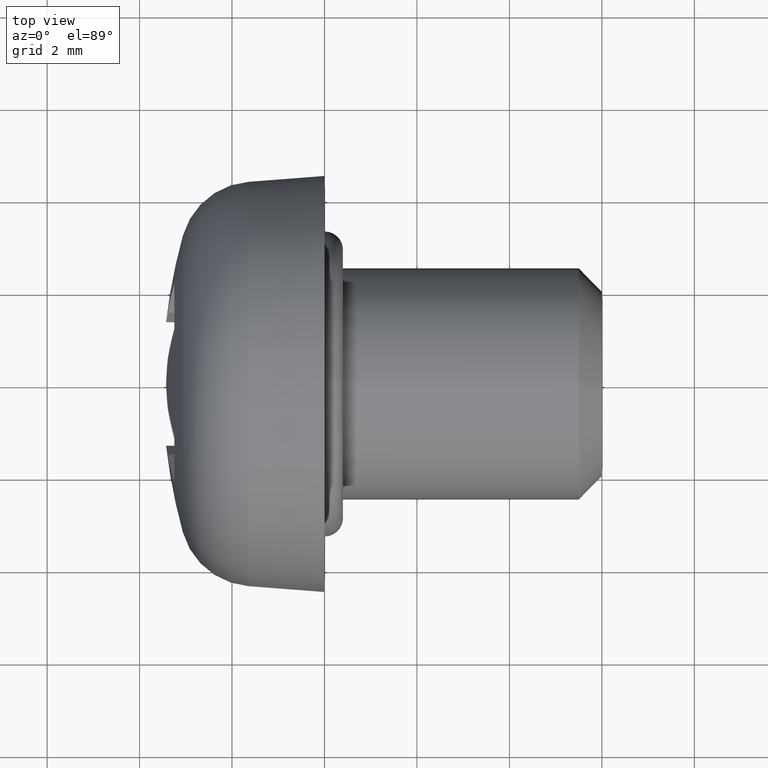
[diagram: clean part render]
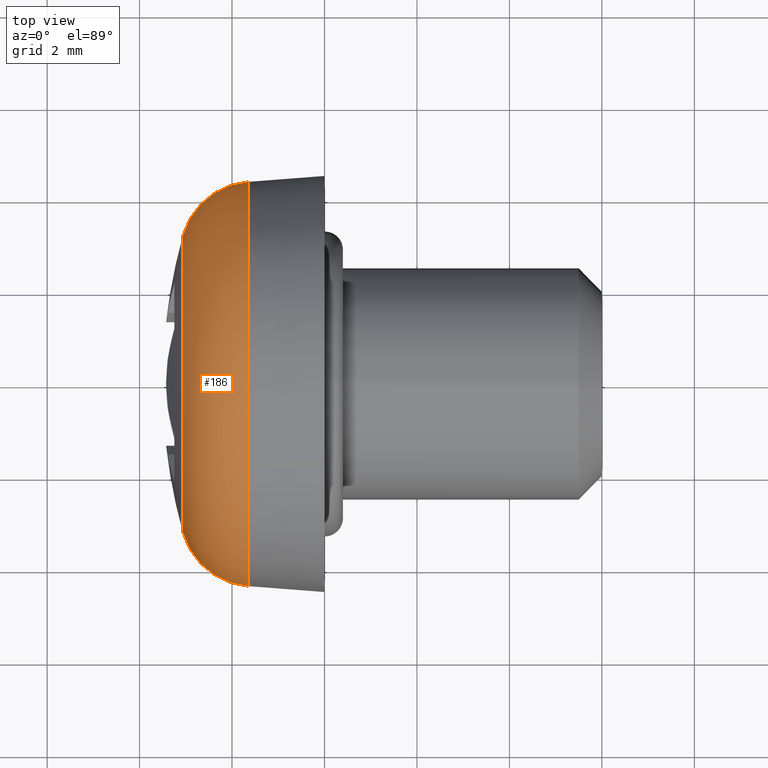
[diagram: same view with one face highlighted and labeled with its STEP entity id]
A machine part, top view. The second image highlights one B-rep face of the part: STEP entity #186.
In plain terms, the highlighted toroidal blend (fillet) surface has major radius 2.7782 mm and minor (blend) radius 1.6 mm.
Its self-contained STEP definition (entity closure, byte-faithful):
#3 = CARTESIAN_POINT ( 'NONE',  ( -3.063903015048163000, 3.205643002276122200, 0.0000000000000000000 ) ) ;
#22 = DIRECTION ( 'NONE',  ( 1.000000000000000000, 2.478176394271778600E-016, -0.0000000000000000000 ) ) ;
#73 = CIRCLE ( 'NONE', #1084, 3.205643002276123100 ) ;
#109 = EDGE_CURVE ( 'NONE', #413, #1160, #73, .T. ) ;
#186 = ADVANCED_FACE ( 'NONE', ( #741 ), #512, .T. ) ;
#205 = EDGE_CURVE ( 'NONE', #270, #1032, #260, .T. ) ;
#209 = DIRECTION ( 'NONE',  ( -0.0000000000000000000, 0.0000000000000000000, -1.000000000000000000 ) ) ;
#218 = CARTESIAN_POINT ( 'NONE',  ( -3.063903015048163000, -7.592892126230487900E-016, 0.0000000000000000000 ) ) ;
#221 = DIRECTION ( 'NONE',  ( -1.000000000000000000, 0.0000000000000000000, 0.0000000000000000000 ) ) ;
#260 = CIRCLE ( 'NONE', #409, 4.373513440437846200 ) ;
#270 = VERTEX_POINT ( 'NONE', #932 ) ;
#295 = CARTESIAN_POINT ( 'NONE',  ( -1.522049279690289600, 2.778223935304223500, 0.0000000000000000000 ) ) ;
#298 = DIRECTION ( 'NONE',  ( -2.478176394271778600E-016, 1.000000000000000000, 0.0000000000000000000 ) ) ;
#323 = CIRCLE ( 'NONE', #587, 1.600000000015049200 ) ;
#337 = AXIS2_PLACEMENT_3D ( 'NONE', #1038, #483, #298 ) ;
#390 = ORIENTED_EDGE ( 'NONE', *, *, #1026, .F. ) ;
#409 = AXIS2_PLACEMENT_3D ( 'NONE', #1034, #937, #824 ) ;
#413 = VERTEX_POINT ( 'NONE', #3 ) ;
#438 = DIRECTION ( 'NONE',  ( -2.705734036424346800E-016, 1.000000000000000000, 0.0000000000000000000 ) ) ;
#472 = CARTESIAN_POINT ( 'NONE',  ( -3.063903015048162100, -3.205643002259138500, 3.925780441946566000E-016 ) ) ;
#483 = DIRECTION ( 'NONE',  ( 1.000000000000000000, 2.478176394271778600E-016, -0.0000000000000000000 ) ) ;
#487 = CARTESIAN_POINT ( 'NONE',  ( -1.522049279690288200, -2.778223935304224400, 3.402343049684881400E-016 ) ) ;
#512 = TOROIDAL_SURFACE ( 'NONE', #337, 2.778223935304224000, 1.600000000015049400 ) ;
#551 = ORIENTED_EDGE ( 'NONE', *, *, #1199, .T. ) ;
#587 = AXIS2_PLACEMENT_3D ( 'NONE', #295, #209, #221 ) ;
#596 = CIRCLE ( 'NONE', #635, 1.600000000015049400 ) ;
#635 = AXIS2_PLACEMENT_3D ( 'NONE', #487, #1177, #1073 ) ;
#741 = FACE_OUTER_BOUND ( 'NONE', #1250, .T. ) ;
#751 = ORIENTED_EDGE ( 'NONE', *, *, #109, .T. ) ;
#824 = DIRECTION ( 'NONE',  ( -2.479018727737033300E-016, 1.000000000000000000, 0.0000000000000000000 ) ) ;
#917 = CARTESIAN_POINT ( 'NONE',  ( -1.644733406041988500, -4.373513440437846200, 5.433459916008446800E-016 ) ) ;
#932 = CARTESIAN_POINT ( 'NONE',  ( -1.644733406041990700, 4.373513440437846200, 0.0000000000000000000 ) ) ;
#937 = DIRECTION ( 'NONE',  ( 1.000000000000000000, 2.478176394271778600E-016, -0.0000000000000000000 ) ) ;
#951 = ORIENTED_EDGE ( 'NONE', *, *, #205, .F. ) ;
#1026 = EDGE_CURVE ( 'NONE', #413, #270, #323, .T. ) ;
#1032 = VERTEX_POINT ( 'NONE', #917 ) ;
#1034 = CARTESIAN_POINT ( 'NONE',  ( -1.644733406041989600, -4.075939501723478800E-016, 0.0000000000000000000 ) ) ;
#1038 = CARTESIAN_POINT ( 'NONE',  ( -1.522049279690288900, -4.336808689942017700E-016, 0.0000000000000000000 ) ) ;
#1073 = DIRECTION ( 'NONE',  ( 0.0000000000000000000, -1.000000000000000000, 1.224646799147353200E-016 ) ) ;
#1084 = AXIS2_PLACEMENT_3D ( 'NONE', #218, #22, #438 ) ;
#1160 = VERTEX_POINT ( 'NONE', #472 ) ;
#1177 = DIRECTION ( 'NONE',  ( -3.034890788967462600E-032, 1.224646799147353200E-016, 1.000000000000000000 ) ) ;
#1199 = EDGE_CURVE ( 'NONE', #1160, #1032, #596, .T. ) ;
#1250 = EDGE_LOOP ( 'NONE', ( #751, #551, #951, #390 ) ) ;